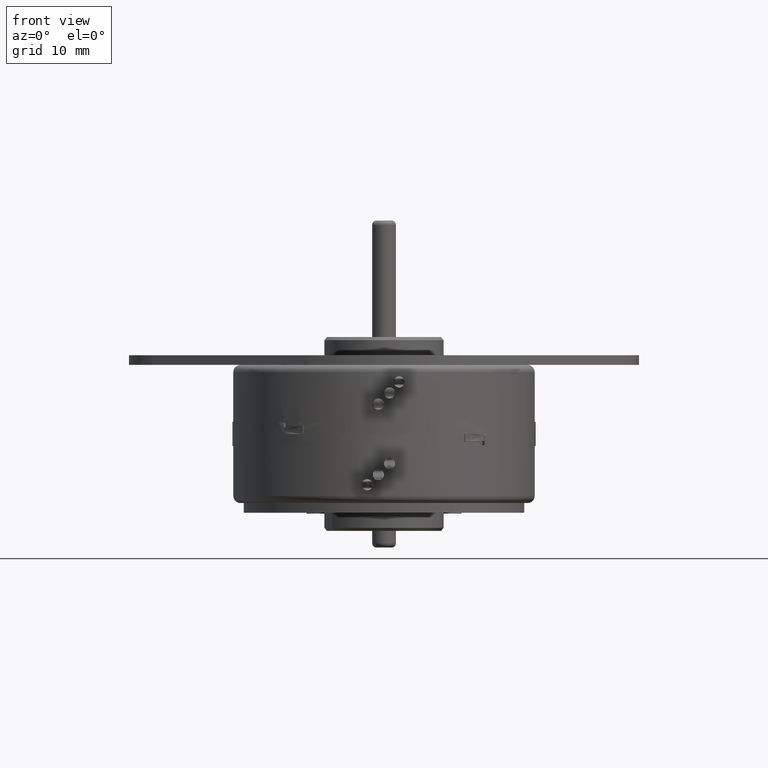
[diagram: clean part render]
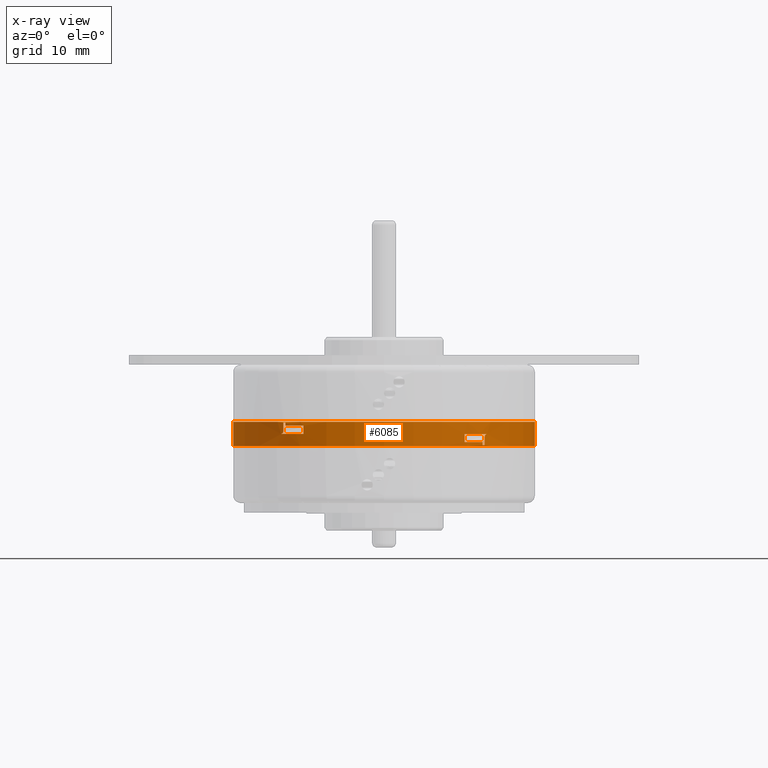
[diagram: x-ray — body ghosted, one internal face saturated and labeled with its STEP entity id]
A machine part, front view, then the same camera in x-ray: the body is ghosted and one INTERNAL B-rep face — a face not visible from any outside direction — is saturated and labeled: STEP entity #6085.
In plain terms, the highlighted cylindrical surface (partial cylindrical patch) has radius 12.639 mm, axis along (0, 0, -1).
Its self-contained STEP definition (entity closure, byte-faithful):
#1083=CARTESIAN_POINT('',(0.E0,0.E0,3.999999999999E-2));
#1084=DIRECTION('',(0.E0,0.E0,-1.E0));
#1085=DIRECTION('',(1.E0,0.E0,0.E0));
#1086=AXIS2_PLACEMENT_3D('',#1083,#1084,#1085);
#1088=DIRECTION('',(0.E0,0.E0,-1.E0));
#1089=VECTOR('',#1088,7.999999999999E-2);
#1090=CARTESIAN_POINT('',(-4.976E-1,0.E0,3.999999999999E-2));
#1091=LINE('',#1090,#1089);
#1092=DIRECTION('',(0.E0,0.E0,1.E0));
#1093=VECTOR('',#1092,7.999999999999E-2);
#1094=CARTESIAN_POINT('',(4.976E-1,0.E0,-3.999999999999E-2));
#1095=LINE('',#1094,#1093);
#1160=DIRECTION('',(5.633353865691E-13,-4.132496813883E-13,1.E0));
#1161=VECTOR('',#1160,2.7E-2);
#1162=CARTESIAN_POINT('',(-2.663831404003E-1,-4.202924963766E-1,0.E0));
#1163=LINE('',#1162,#1161);
#1164=DIRECTION('',(-1.498801083244E-13,7.216449660063E-14,1.E0));
#1165=VECTOR('',#1164,1.E-2);
#1166=CARTESIAN_POINT('',(-3.251175893084E-1,-3.767018889285E-1,2.7E-2));
#1167=LINE('',#1166,#1165);
#1168=DIRECTION('',(4.461451784128E-13,-2.199886363602E-13,-1.E0));
#1169=VECTOR('',#1168,2.700000000008E-2);
#1170=CARTESIAN_POINT('',(-3.323256177841E-1,-3.703585340780E-1,3.7E-2));
#1171=LINE('',#1170,#1169);
#1172=DIRECTION('',(-1.192461767190E-13,-8.223874256484E-14,-1.E0));
#1173=VECTOR('',#1172,2.7E-2);
#1174=CARTESIAN_POINT('',(2.663831404003E-1,-4.202924963766E-1,0.E0));
#1175=LINE('',#1174,#1173);
#1176=DIRECTION('',(1.887379141863E-13,1.332267629550E-13,-1.E0));
#1177=VECTOR('',#1176,1.E-2);
#1178=CARTESIAN_POINT('',(3.251175893083E-1,-3.767018889285E-1,-2.7E-2));
#1179=LINE('',#1178,#1177);
#1180=DIRECTION('',(-5.222160152850E-13,-2.940035046683E-13,1.E0));
#1181=VECTOR('',#1180,2.700000000008E-2);
#1182=CARTESIAN_POINT('',(3.323256177841E-1,-3.703585340780E-1,-3.7E-2));
#1183=LINE('',#1182,#1181);
#1199=CARTESIAN_POINT('',(0.E0,0.E0,-3.999999999999E-2));
#1200=DIRECTION('',(0.E0,0.E0,1.E0));
#1201=DIRECTION('',(-1.E0,0.E0,0.E0));
#1202=AXIS2_PLACEMENT_3D('',#1199,#1200,#1201);
#2451=CARTESIAN_POINT('',(-3.398023183636E-1,-3.635108587576E-1,0.E0));
#2452=CARTESIAN_POINT('',(-3.388530717936E-1,-3.643981945206E-1,0.E0));
#2453=CARTESIAN_POINT('',(-3.369340761371E-1,-3.661773874361E-1,
4.937679290509E-4));
#2454=CARTESIAN_POINT('',(-3.344028866712E-1,-3.684872491007E-1,
2.715345861026E-3));
#2455=CARTESIAN_POINT('',(-3.327078155953E-1,-3.700163690828E-1,
6.098012690534E-3));
#2456=CARTESIAN_POINT('',(-3.323256177841E-1,-3.703585340780E-1,
8.704982681771E-3));
#2457=CARTESIAN_POINT('',(-3.323256177841E-1,-3.703585340780E-1,
9.999999999913E-3));
#2515=CARTESIAN_POINT('',(0.E0,0.E0,0.E0));
#2516=DIRECTION('',(0.E0,0.E0,-1.E0));
#2517=DIRECTION('',(-5.353358930874E-1,-8.446392612070E-1,0.E0));
#2518=AXIS2_PLACEMENT_3D('',#2515,#2516,#2517);
#2545=CARTESIAN_POINT('',(0.E0,0.E0,3.699999999999E-2));
#2546=DIRECTION('',(0.E0,0.E0,1.E0));
#2547=DIRECTION('',(-6.678569489231E-1,-7.442896585169E-1,0.E0));
#2548=AXIS2_PLACEMENT_3D('',#2545,#2546,#2547);
#2585=CARTESIAN_POINT('',(0.E0,0.E0,2.699999999999E-2));
#2586=DIRECTION('',(0.E0,0.E0,1.E0));
#2587=DIRECTION('',(-6.533713611502E-1,-7.570375581361E-1,0.E0));
#2588=AXIS2_PLACEMENT_3D('',#2585,#2586,#2587);
#2608=CARTESIAN_POINT('',(0.E0,0.E0,0.E0));
#2609=DIRECTION('',(0.E0,0.E0,1.E0));
#2610=DIRECTION('',(5.353358930874E-1,-8.446392612070E-1,0.E0));
#2611=AXIS2_PLACEMENT_3D('',#2608,#2609,#2610);
#2628=CARTESIAN_POINT('',(3.398023183636E-1,-3.635108587576E-1,0.E0));
#2629=CARTESIAN_POINT('',(3.388530717935E-1,-3.643981945206E-1,0.E0));
#2630=CARTESIAN_POINT('',(3.369340761369E-1,-3.661773874363E-1,
-4.937679290850E-4));
#2631=CARTESIAN_POINT('',(3.344028866708E-1,-3.684872491011E-1,
-2.715345861515E-3));
#2632=CARTESIAN_POINT('',(3.327078155953E-1,-3.700163690828E-1,
-6.098012690801E-3));
#2633=CARTESIAN_POINT('',(3.323256177841E-1,-3.703585340780E-1,
-8.704982681871E-3));
#2634=CARTESIAN_POINT('',(3.323256177841E-1,-3.703585340780E-1,
-9.999999999913E-3));
#2679=CARTESIAN_POINT('',(0.E0,0.E0,-2.699999999999E-2));
#2680=DIRECTION('',(0.E0,0.E0,-1.E0));
#2681=DIRECTION('',(6.533713611502E-1,-7.570375581362E-1,0.E0));
#2682=AXIS2_PLACEMENT_3D('',#2679,#2680,#2681);
#2701=CARTESIAN_POINT('',(0.E0,0.E0,-3.699999999999E-2));
#2702=DIRECTION('',(0.E0,0.E0,-1.E0));
#2703=DIRECTION('',(6.678569489231E-1,-7.442896585168E-1,0.E0));
#2704=AXIS2_PLACEMENT_3D('',#2701,#2702,#2703);
#3670=CARTESIAN_POINT('',(-3.323256177841E-1,-3.703585340780E-1,3.7E-2));
#3671=VERTEX_POINT('',#3670);
#3672=CARTESIAN_POINT('',(-3.251175893084E-1,-3.767018889285E-1,
3.699999999999E-2));
#3673=VERTEX_POINT('',#3672);
#3678=CARTESIAN_POINT('',(-3.323256177841E-1,-3.703585340780E-1,
9.999999999913E-3));
#3679=VERTEX_POINT('',#3678);
#3682=CARTESIAN_POINT('',(-2.663831404003E-1,-4.202924963766E-1,2.7E-2));
#3683=VERTEX_POINT('',#3682);
#3684=CARTESIAN_POINT('',(-2.663831404003E-1,-4.202924963766E-1,0.E0));
#3685=VERTEX_POINT('',#3684);
#3688=CARTESIAN_POINT('',(-3.251175893084E-1,-3.767018889285E-1,2.7E-2));
#3689=VERTEX_POINT('',#3688);
#3690=CARTESIAN_POINT('',(4.976E-1,0.E0,-3.999999999999E-2));
#3691=CARTESIAN_POINT('',(4.976E-1,0.E0,3.999999999999E-2));
#3692=VERTEX_POINT('',#3690);
#3693=VERTEX_POINT('',#3691);
#3694=CARTESIAN_POINT('',(-4.976E-1,0.E0,-3.999999999999E-2));
#3695=VERTEX_POINT('',#3694);
#3696=CARTESIAN_POINT('',(-4.976E-1,0.E0,3.999999999999E-2));
#3697=VERTEX_POINT('',#3696);
#3698=VERTEX_POINT('',#2451);
#3699=CARTESIAN_POINT('',(2.663831404003E-1,-4.202924963766E-1,0.E0));
#3700=CARTESIAN_POINT('',(3.398023183636E-1,-3.635108587576E-1,0.E0));
#3701=VERTEX_POINT('',#3699);
#3702=VERTEX_POINT('',#3700);
#3703=CARTESIAN_POINT('',(2.663831404003E-1,-4.202924963766E-1,-2.7E-2));
#3704=VERTEX_POINT('',#3703);
#3705=CARTESIAN_POINT('',(3.251175893083E-1,-3.767018889286E-1,
-2.699999999999E-2));
#3706=VERTEX_POINT('',#3705);
#3707=CARTESIAN_POINT('',(3.251175893083E-1,-3.767018889285E-1,-3.7E-2));
#3708=VERTEX_POINT('',#3707);
#3709=CARTESIAN_POINT('',(3.323256177841E-1,-3.703585340780E-1,
-3.699999999999E-2));
#3710=VERTEX_POINT('',#3709);
#3711=CARTESIAN_POINT('',(3.323256177841E-1,-3.703585340780E-1,
-9.999999999913E-3));
#3712=VERTEX_POINT('',#3711);
#6041=CARTESIAN_POINT('',(0.E0,0.E0,4.298897453355E-2));
#6042=DIRECTION('',(0.E0,0.E0,-1.E0));
#6043=DIRECTION('',(1.E0,0.E0,0.E0));
#6044=AXIS2_PLACEMENT_3D('',#6041,#6042,#6043);
#6045=CYLINDRICAL_SURFACE('',#6044,4.976E-1);
#6046=ORIENTED_EDGE('',*,*,#5959,.F.);
#6048=ORIENTED_EDGE('',*,*,#6047,.F.);
#6049=ORIENTED_EDGE('',*,*,#5955,.F.);
#6050=ORIENTED_EDGE('',*,*,#5945,.F.);
#6051=EDGE_LOOP('',(#6046,#6048,#6049,#6050));
#6052=FACE_OUTER_BOUND('',#6051,.F.);
#6054=ORIENTED_EDGE('',*,*,#6053,.F.);
#6056=ORIENTED_EDGE('',*,*,#6055,.F.);
#6058=ORIENTED_EDGE('',*,*,#6057,.T.);
#6060=ORIENTED_EDGE('',*,*,#6059,.F.);
#6062=ORIENTED_EDGE('',*,*,#6061,.T.);
#6064=ORIENTED_EDGE('',*,*,#6063,.F.);
#6066=ORIENTED_EDGE('',*,*,#6065,.T.);
#6067=EDGE_LOOP('',(#6054,#6056,#6058,#6060,#6062,#6064,#6066));
#6068=FACE_BOUND('',#6067,.F.);
#6070=ORIENTED_EDGE('',*,*,#6069,.F.);
#6072=ORIENTED_EDGE('',*,*,#6071,.T.);
#6074=ORIENTED_EDGE('',*,*,#6073,.F.);
#6076=ORIENTED_EDGE('',*,*,#6075,.T.);
#6078=ORIENTED_EDGE('',*,*,#6077,.F.);
#6080=ORIENTED_EDGE('',*,*,#6079,.T.);
#6082=ORIENTED_EDGE('',*,*,#6081,.F.);
#6083=EDGE_LOOP('',(#6070,#6072,#6074,#6076,#6078,#6080,#6082));
#6084=FACE_BOUND('',#6083,.F.);
#6085=ADVANCED_FACE('',(#6052,#6068,#6084),#6045,.T.);
#1087=CIRCLE('',#1086,4.976E-1);
#1203=CIRCLE('',#1202,4.976E-1);
#2458=B_SPLINE_CURVE_WITH_KNOTS('',3,(#2451,#2452,#2453,#2454,#2455,#2456,
#2457),.UNSPECIFIED.,.F.,.F.,(4,1,1,1,4),(0.E0,2.5E-1,5.E-1,7.5E-1,1.E0),
.UNSPECIFIED.);
#2519=CIRCLE('',#2518,4.976E-1);
#2549=CIRCLE('',#2548,4.976E-1);
#2589=CIRCLE('',#2588,4.976E-1);
#2612=CIRCLE('',#2611,4.976E-1);
#2635=B_SPLINE_CURVE_WITH_KNOTS('',3,(#2628,#2629,#2630,#2631,#2632,#2633,
#2634),.UNSPECIFIED.,.F.,.F.,(4,1,1,1,4),(0.E0,2.5E-1,5.E-1,7.5E-1,1.E0),
.UNSPECIFIED.);
#2683=CIRCLE('',#2682,4.976E-1);
#2705=CIRCLE('',#2704,4.976E-1);
#5945=EDGE_CURVE('',#3693,#3697,#1087,.T.);
#5955=EDGE_CURVE('',#3697,#3695,#1091,.T.);
#5959=EDGE_CURVE('',#3692,#3693,#1095,.T.);
#6047=EDGE_CURVE('',#3695,#3692,#1203,.T.);
#6053=EDGE_CURVE('',#3698,#3679,#2458,.T.);
#6055=EDGE_CURVE('',#3685,#3698,#2519,.T.);
#6057=EDGE_CURVE('',#3685,#3683,#1163,.T.);
#6059=EDGE_CURVE('',#3689,#3683,#2589,.T.);
#6061=EDGE_CURVE('',#3689,#3673,#1167,.T.);
#6063=EDGE_CURVE('',#3671,#3673,#2549,.T.);
#6065=EDGE_CURVE('',#3671,#3679,#1171,.T.);
#6069=EDGE_CURVE('',#3701,#3702,#2612,.T.);
#6071=EDGE_CURVE('',#3701,#3704,#1175,.T.);
#6073=EDGE_CURVE('',#3706,#3704,#2683,.T.);
#6075=EDGE_CURVE('',#3706,#3708,#1179,.T.);
#6077=EDGE_CURVE('',#3710,#3708,#2705,.T.);
#6079=EDGE_CURVE('',#3710,#3712,#1183,.T.);
#6081=EDGE_CURVE('',#3702,#3712,#2635,.T.);